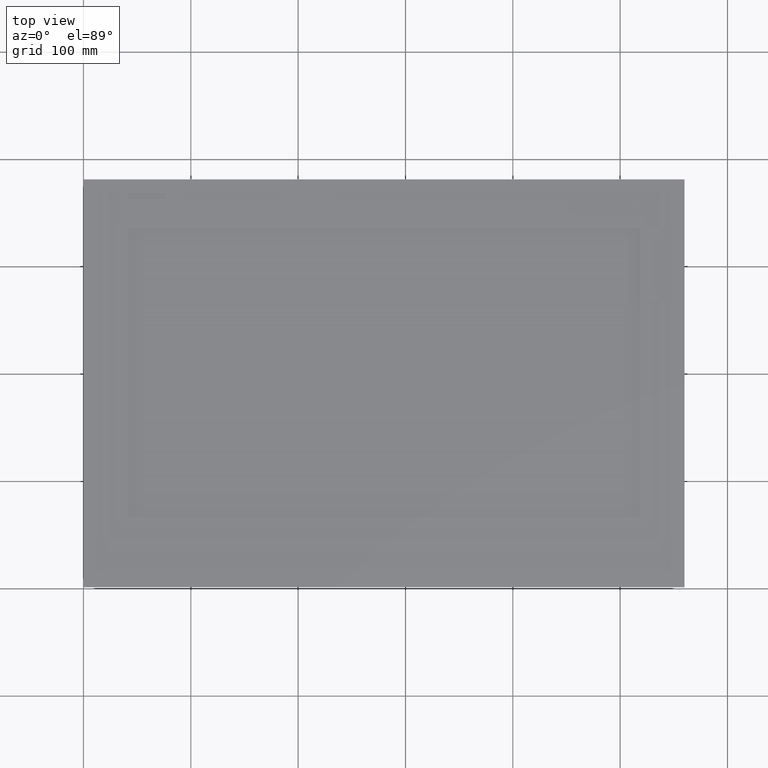
[diagram: clean part render]
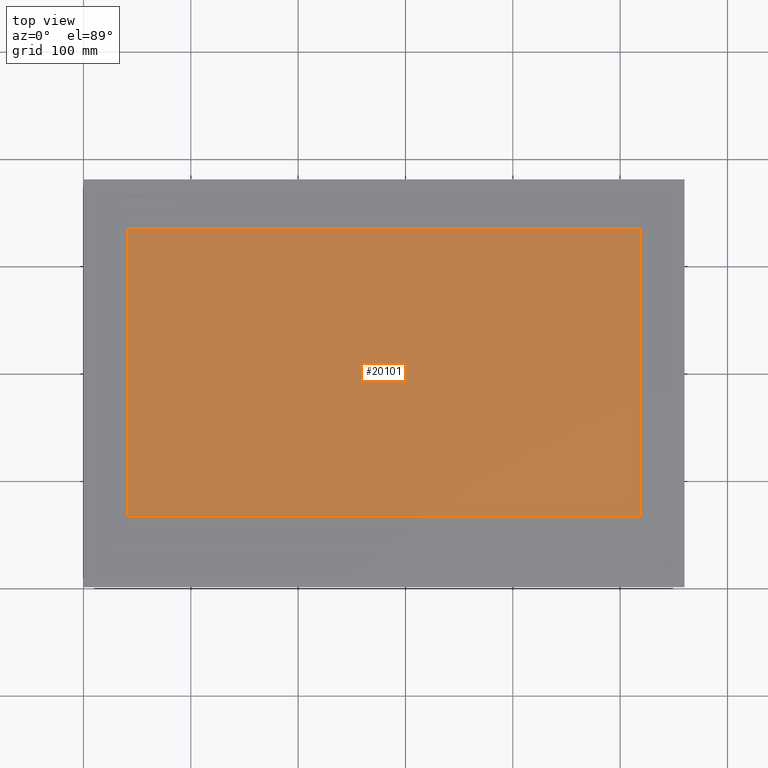
[diagram: same view with one face highlighted and labeled with its STEP entity id]
A machine part, top view. The second image highlights one B-rep face of the part: STEP entity #20101.
In plain terms, the highlighted planar face has unit normal (0, 0, -1).
Its self-contained STEP definition (entity closure, byte-faithful):
#5079=LINE('',#69212,#10425);
#5086=LINE('',#69227,#10432);
#5088=LINE('',#69231,#10434);
#5090=LINE('',#69235,#10436);
#10425=VECTOR('',#57261,1.);
#10432=VECTOR('',#57282,1.);
#10434=VECTOR('',#57286,1.);
#10436=VECTOR('',#57290,1.);
#15251=FACE_OUTER_BOUND('',#23827,.T.);
#17632=PLANE('',#51871);
#20101=ADVANCED_FACE('',(#15251),#17632,.F.);
#23827=EDGE_LOOP('',(#29654,#29655,#29656,#29657));
#29654=ORIENTED_EDGE('',*,*,#45538,.F.);
#29655=ORIENTED_EDGE('',*,*,#45549,.F.);
#29656=ORIENTED_EDGE('',*,*,#45547,.F.);
#29657=ORIENTED_EDGE('',*,*,#45545,.F.);
#40528=VERTEX_POINT('',#69211);
#40529=VERTEX_POINT('',#69213);
#40530=VERTEX_POINT('',#69228);
#40531=VERTEX_POINT('',#69232);
#45538=EDGE_CURVE('',#40528,#40529,#5079,.T.);
#45545=EDGE_CURVE('',#40529,#40530,#5086,.T.);
#45547=EDGE_CURVE('',#40530,#40531,#5088,.T.);
#45549=EDGE_CURVE('',#40531,#40528,#5090,.T.);
#51871=AXIS2_PLACEMENT_3D('',#69237,#57293,#57294);
#57261=DIRECTION('',(0.,1.,0.));
#57282=DIRECTION('',(1.,0.,0.));
#57286=DIRECTION('',(0.,-1.,0.));
#57290=DIRECTION('',(-1.,0.,0.));
#57293=DIRECTION('',(0.,0.,-1.));
#57294=DIRECTION('',(-1.,0.,0.));
#69211=CARTESIAN_POINT('',(-238.62,-179.905,3.));
#69212=CARTESIAN_POINT('',(-238.62,-179.905,3.));
#69213=CARTESIAN_POINT('',(-238.62,88.8050000000001,3.));
#69227=CARTESIAN_POINT('',(-238.62,88.805,3.));
#69228=CARTESIAN_POINT('',(238.62,88.805,3.));
#69231=CARTESIAN_POINT('',(238.62,88.805,3.));
#69232=CARTESIAN_POINT('',(238.62,-179.905,3.));
#69235=CARTESIAN_POINT('',(238.62,-179.905,3.));
#69237=CARTESIAN_POINT('',(-238.62,88.805,3.));